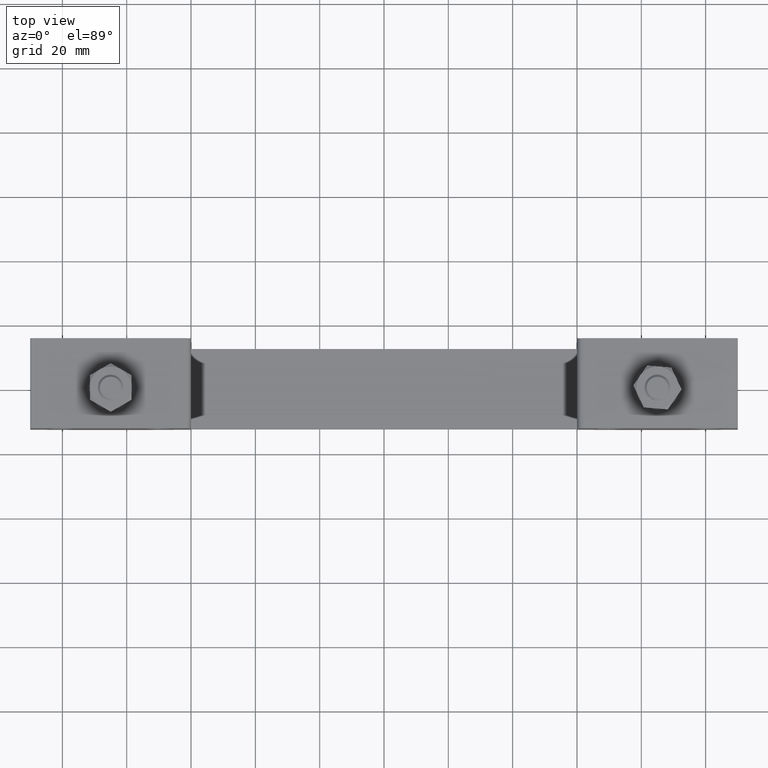
[diagram: clean part render]
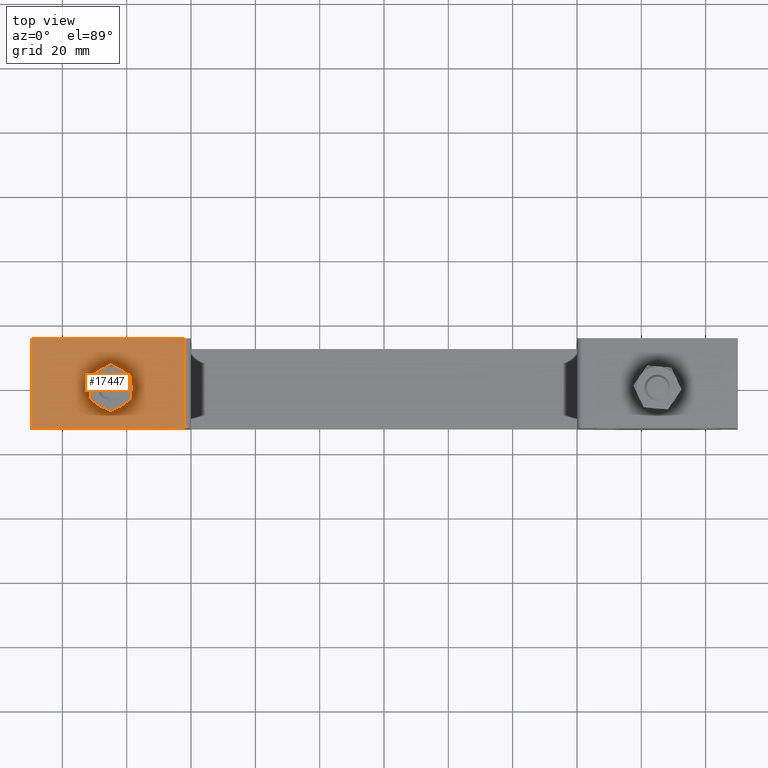
[diagram: same view with one face highlighted and labeled with its STEP entity id]
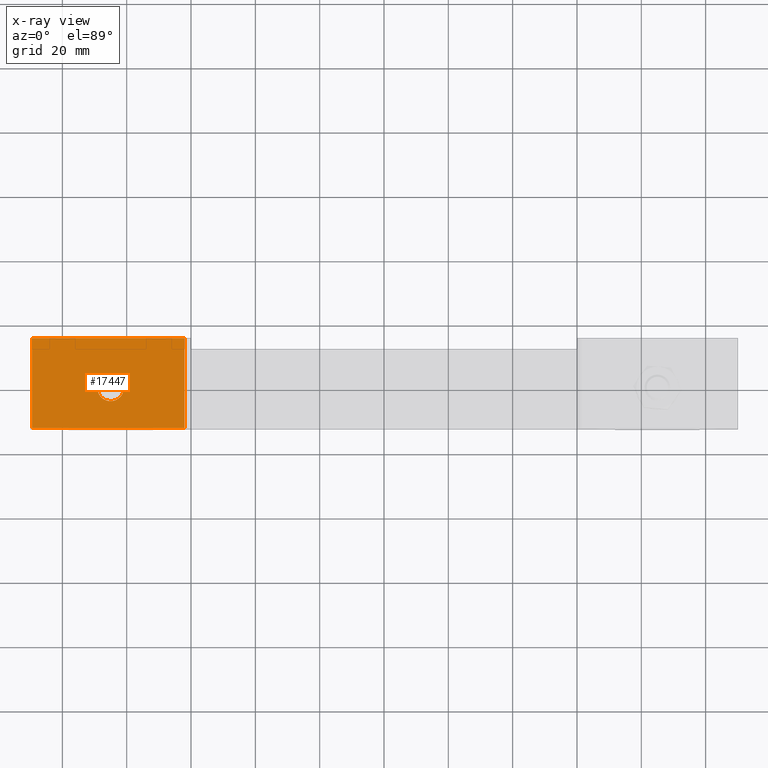
[diagram: x-ray of the same camera — body ghosted, the highlighted face saturated]
A machine part, top view. The second image highlights one B-rep face of the part: STEP entity #17447.
The next image is the same camera in x-ray: the body ghosted, the highlighted face saturated — about 0% of this face is hidden behind the body in this view.
In plain terms, the highlighted planar face has unit normal (0, 0, 1).
Its self-contained STEP definition (entity closure, byte-faithful):
#83 = DIRECTION ( 'NONE',  ( 0.0000000000000000000, -1.000000000000000000, 0.0000000000000000000 ) ) ;
#142 = CARTESIAN_POINT ( 'NONE',  ( -109.5000000000000000, -12.50000000000000000, 22.50000000000000000 ) ) ;
#429 = CARTESIAN_POINT ( 'NONE',  ( -85.00000000000000000, -5.204170427930419700E-015, 22.50000000000000000 ) ) ;
#651 = CIRCLE ( 'NONE', #12292, 4.100000000000006800 ) ;
#695 = ORIENTED_EDGE ( 'NONE', *, *, #18098, .F. ) ;
#961 = EDGE_LOOP ( 'NONE', ( #695, #8531 ) ) ;
#1034 = VERTEX_POINT ( 'NONE', #8850 ) ;
#1082 = CARTESIAN_POINT ( 'NONE',  ( -62.00000000000000000, 15.50000000000000000, 22.50000000000000000 ) ) ;
#1166 = ORIENTED_EDGE ( 'NONE', *, *, #15617, .T. ) ;
#1206 = VERTEX_POINT ( 'NONE', #10490 ) ;
#1471 = FACE_BOUND ( 'NONE', #961, .T. ) ;
#2807 = VECTOR ( 'NONE', #8395, 1000.000000000000000 ) ;
#2920 = VECTOR ( 'NONE', #19812, 1000.000000000000000 ) ;
#3532 = VECTOR ( 'NONE', #83, 1000.000000000000000 ) ;
#4079 = CIRCLE ( 'NONE', #16063, 4.100000000000006800 ) ;
#4126 = DIRECTION ( 'NONE',  ( 1.000000000000000000, 0.0000000000000000000, 0.0000000000000000000 ) ) ;
#4775 = VERTEX_POINT ( 'NONE', #9183 ) ;
#5015 = EDGE_LOOP ( 'NONE', ( #20160, #12065, #1166, #17248 ) ) ;
#5843 = VERTEX_POINT ( 'NONE', #12270 ) ;
#5971 = VERTEX_POINT ( 'NONE', #17228 ) ;
#6229 = DIRECTION ( 'NONE',  ( 0.0000000000000000000, 0.0000000000000000000, 1.000000000000000000 ) ) ;
#7402 = DIRECTION ( 'NONE',  ( 0.0000000000000000000, 0.0000000000000000000, 1.000000000000000000 ) ) ;
#7570 = EDGE_CURVE ( 'NONE', #4775, #1206, #12757, .T. ) ;
#7991 = DIRECTION ( 'NONE',  ( 0.0000000000000000000, 0.0000000000000000000, 1.000000000000000000 ) ) ;
#8395 = DIRECTION ( 'NONE',  ( -1.000000000000000000, 0.0000000000000000000, 0.0000000000000000000 ) ) ;
#8531 = ORIENTED_EDGE ( 'NONE', *, *, #14603, .F. ) ;
#8850 = CARTESIAN_POINT ( 'NONE',  ( -89.10000000000000900, -5.204170427930419700E-015, 22.50000000000000000 ) ) ;
#9183 = CARTESIAN_POINT ( 'NONE',  ( -62.00000000000000000, -12.50000000000000000, 22.50000000000000000 ) ) ;
#9562 = CARTESIAN_POINT ( 'NONE',  ( -85.00000000000000000, -5.204170427930419700E-015, 22.50000000000000000 ) ) ;
#10490 = CARTESIAN_POINT ( 'NONE',  ( -62.00000000000000000, 15.50000000000000000, 22.50000000000000000 ) ) ;
#10799 = LINE ( 'NONE', #17178, #19178 ) ;
#11906 = CARTESIAN_POINT ( 'NONE',  ( -109.5000000000000000, -12.50000000000000000, 22.50000000000000000 ) ) ;
#12065 = ORIENTED_EDGE ( 'NONE', *, *, #19473, .T. ) ;
#12270 = CARTESIAN_POINT ( 'NONE',  ( -109.5000000000000000, 15.50000000000000000, 22.50000000000000000 ) ) ;
#12292 = AXIS2_PLACEMENT_3D ( 'NONE', #9562, #6229, #18799 ) ;
#12757 = LINE ( 'NONE', #1082, #2920 ) ;
#13702 = EDGE_CURVE ( 'NONE', #1206, #5843, #16058, .T. ) ;
#13799 = CARTESIAN_POINT ( 'NONE',  ( -60.00000000000000000, 15.50000000000000000, 22.50000000000000000 ) ) ;
#14603 = EDGE_CURVE ( 'NONE', #5971, #1034, #651, .T. ) ;
#15617 = EDGE_CURVE ( 'NONE', #18375, #4775, #10799, .T. ) ;
#15891 = DIRECTION ( 'NONE',  ( -1.000000000000000000, 0.0000000000000000000, 0.0000000000000000000 ) ) ;
#16058 = LINE ( 'NONE', #16229, #2807 ) ;
#16063 = AXIS2_PLACEMENT_3D ( 'NONE', #429, #7991, #15891 ) ;
#16229 = CARTESIAN_POINT ( 'NONE',  ( -60.00000000000000000, 15.50000000000000000, 22.50000000000000000 ) ) ;
#17178 = CARTESIAN_POINT ( 'NONE',  ( -60.00000000000000000, -12.50000000000000000, 22.50000000000000000 ) ) ;
#17228 = CARTESIAN_POINT ( 'NONE',  ( -80.90000000000000600, -5.706275615580833700E-015, 22.50000000000000000 ) ) ;
#17248 = ORIENTED_EDGE ( 'NONE', *, *, #7570, .T. ) ;
#17447 = ADVANCED_FACE ( 'NONE', ( #1471, #19094 ), #20062, .T. ) ;
#17801 = LINE ( 'NONE', #142, #3532 ) ;
#18098 = EDGE_CURVE ( 'NONE', #1034, #5971, #4079, .T. ) ;
#18352 = DIRECTION ( 'NONE',  ( -1.000000000000000000, 0.0000000000000000000, 0.0000000000000000000 ) ) ;
#18375 = VERTEX_POINT ( 'NONE', #11906 ) ;
#18799 = DIRECTION ( 'NONE',  ( -1.000000000000000000, 0.0000000000000000000, 0.0000000000000000000 ) ) ;
#19094 = FACE_OUTER_BOUND ( 'NONE', #5015, .T. ) ;
#19178 = VECTOR ( 'NONE', #4126, 1000.000000000000000 ) ;
#19459 = AXIS2_PLACEMENT_3D ( 'NONE', #13799, #7402, #18352 ) ;
#19473 = EDGE_CURVE ( 'NONE', #5843, #18375, #17801, .T. ) ;
#19812 = DIRECTION ( 'NONE',  ( 0.0000000000000000000, 1.000000000000000000, 0.0000000000000000000 ) ) ;
#20062 = PLANE ( 'NONE',  #19459 ) ;
#20160 = ORIENTED_EDGE ( 'NONE', *, *, #13702, .T. ) ;